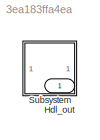
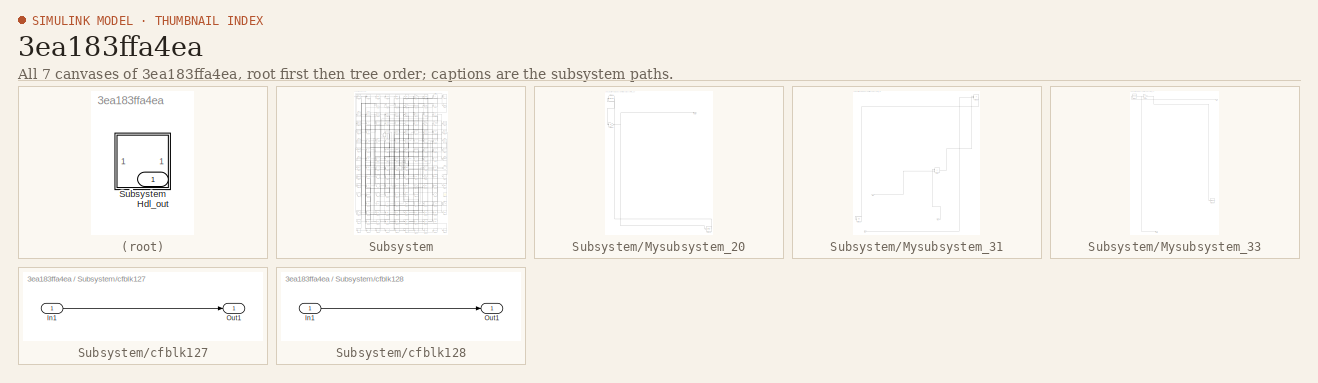
[diagram: thumbnail index - all 7 canvases of the model, root first then tree order]
MODEL slx_3ea183ffa4ea
KIND model
CONFIG AbsTol = auto
CONFIG EnableMultiTasking = off
CONFIG FixedStep = auto
CONFIG MaxStep = auto
CONFIG MinStep = auto
CONFIG RelTol = 1e-3
CONFIG SampleTimeConstraint = Unconstrained
CONFIG SolverName = VariableStepAuto
CONFIG StartTime = 0.0
CONFIG StopTime = 10.0
BLOCK [Outport] Hdl_out
  OutDataTypeStr = uint8
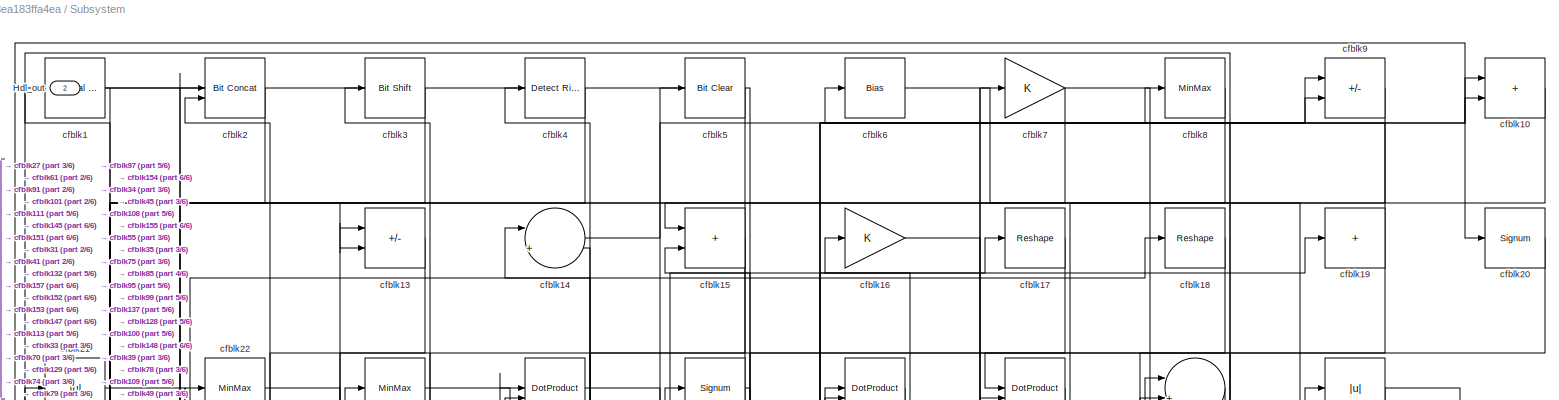
[diagram: Subsystem - part 1/6, full width, top band]
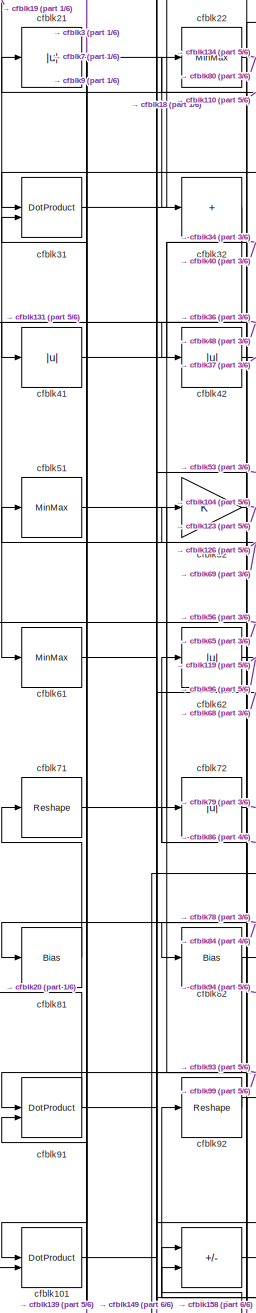
[diagram: Subsystem - part 2/6, middle left region]
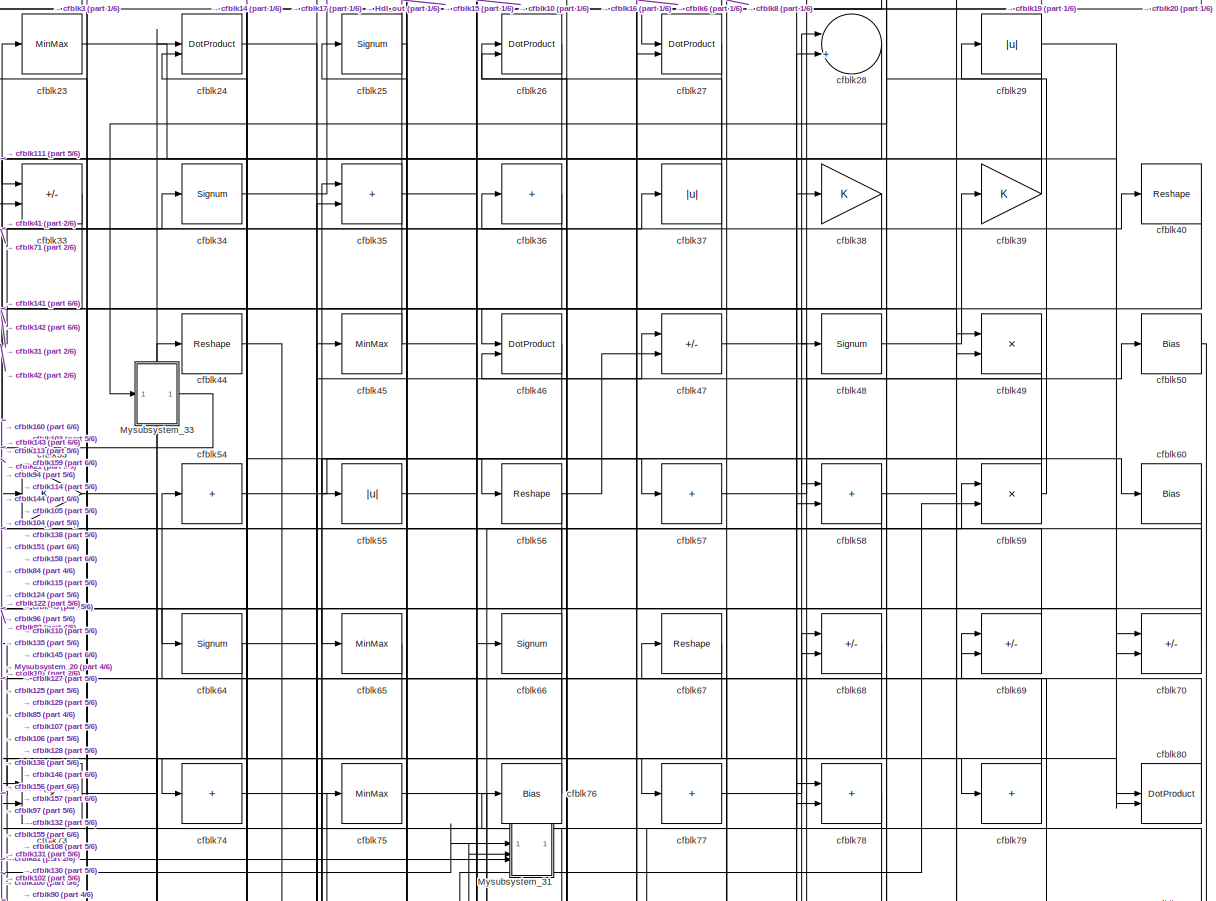
[diagram: Subsystem - part 3/6, full width, top band]
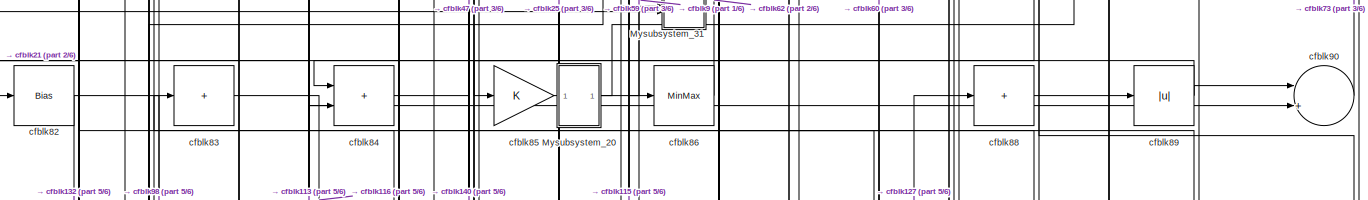
[diagram: Subsystem - part 4/6, full width, middle band]
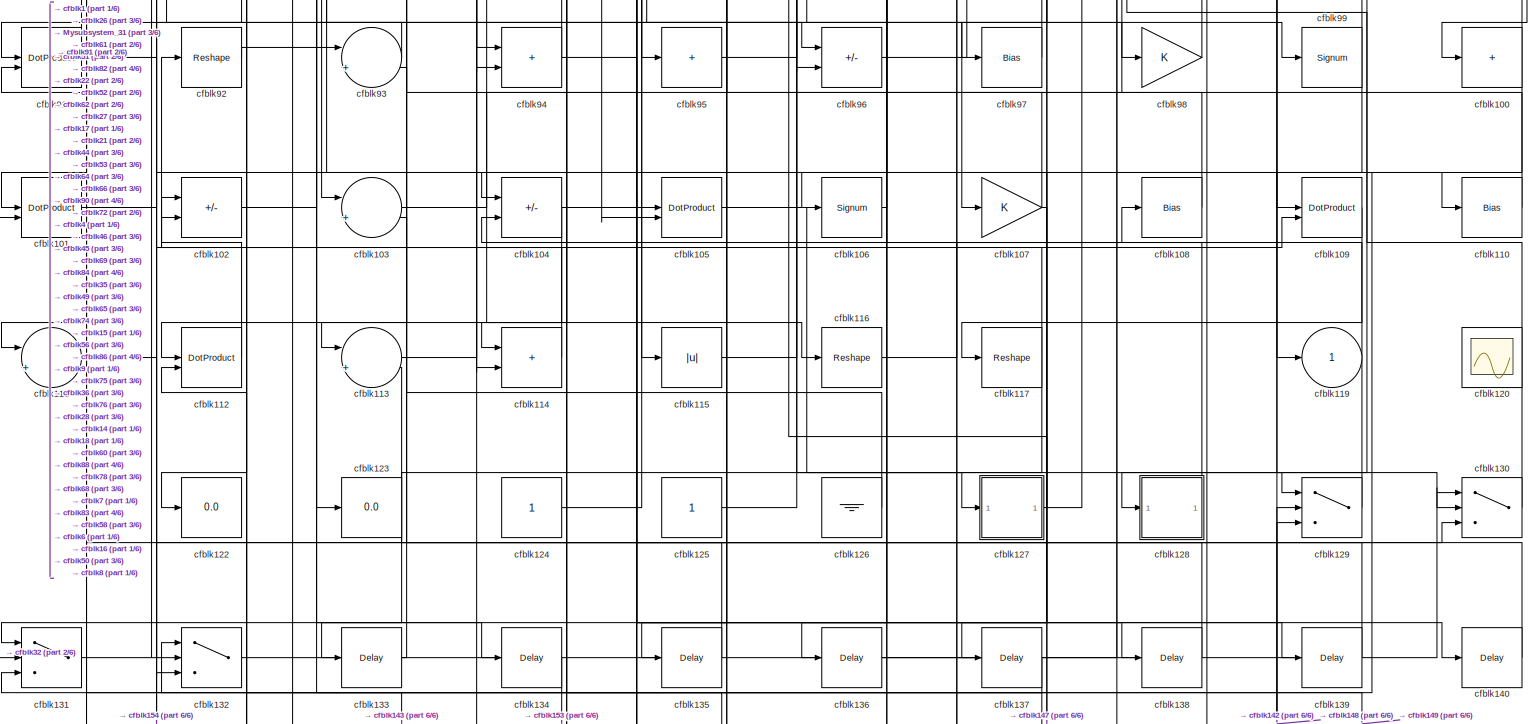
[diagram: Subsystem - part 5/6, full width, bottom band]
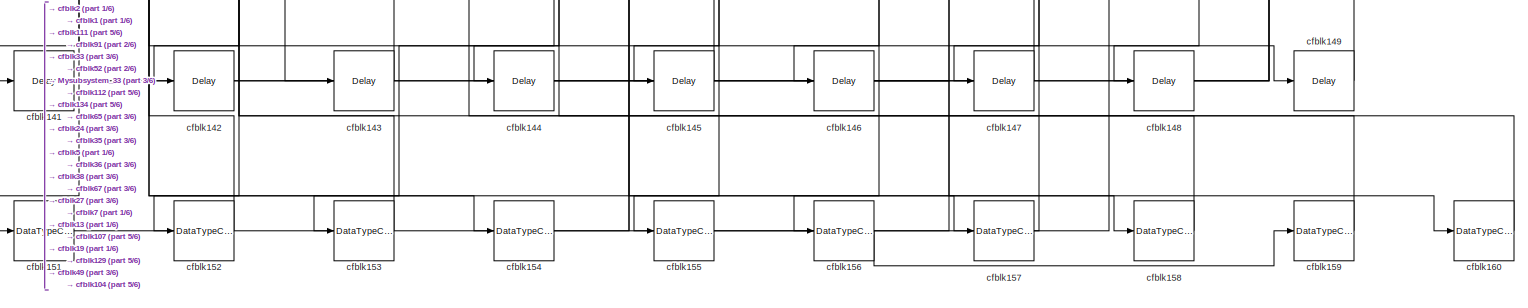
[diagram: Subsystem - part 6/6, full width, bottom band]
BLOCK [SubSystem] Subsystem
BLOCK [Outport] Subsystem/Hdl_out
  OutDataTypeStr = uint8
  Port = 2
BLOCK [SubSystem] Subsystem/Mysubsystem_20
  RTWFcnName = Mysubsystem_20
  RTWFcnNameOpts = User specified
  RTWFileNameOpts = Use function name
  RTWSystemCode = Reusable function
  TreatAsAtomicUnit = on
BLOCK [Outport] Subsystem/Mysubsystem_20/Out1
BLOCK [Delay] Subsystem/Mysubsystem_20/cfblk150
  InputPortMap = u0
  SampleTime = 1
BLOCK [Signum] Subsystem/Mysubsystem_20/cfblk43
BLOCK [Gain] Subsystem/Mysubsystem_20/cfblk63
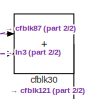
[diagram: Subsystem/Mysubsystem_31 - part 1/2, top right region]
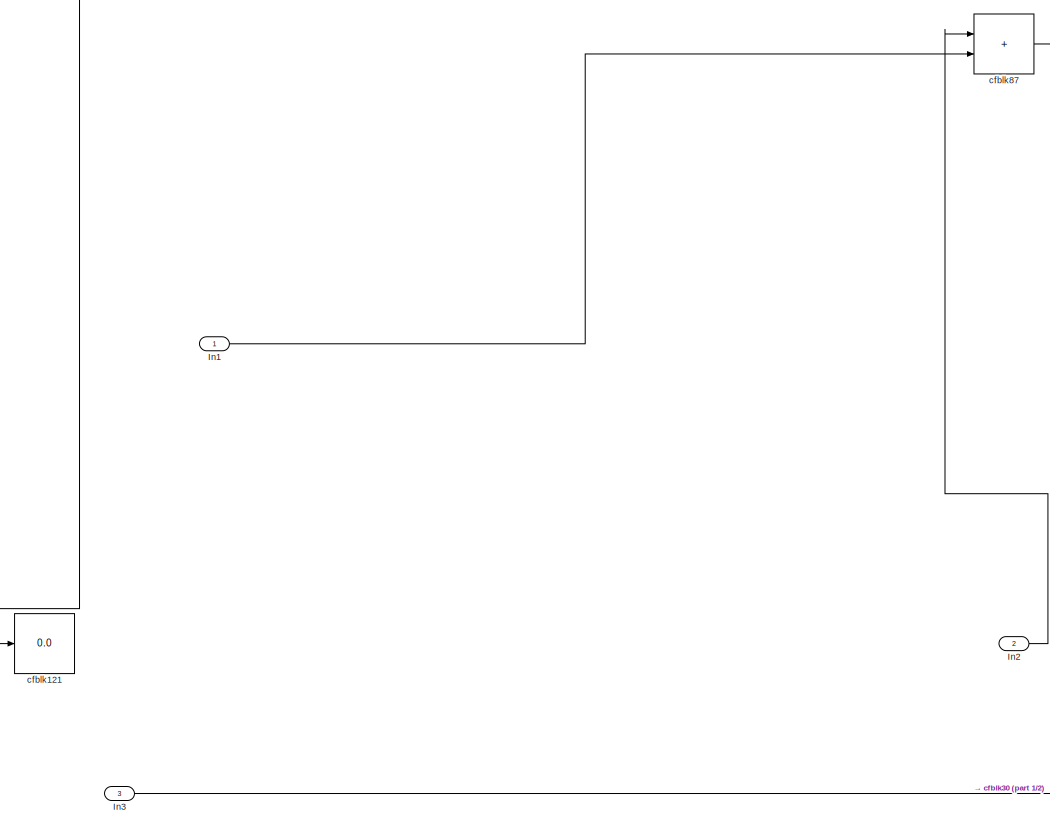
[diagram: Subsystem/Mysubsystem_31 - part 2/2, bottom center region]
BLOCK [SubSystem] Subsystem/Mysubsystem_31
  RTWFcnName = Mysubsystem_31
  RTWFcnNameOpts = User specified
  RTWFileNameOpts = Use function name
  RTWSystemCode = Reusable function
  TreatAsAtomicUnit = on
BLOCK [Inport] Subsystem/Mysubsystem_31/In1
BLOCK [Inport] Subsystem/Mysubsystem_31/In2
  Port = 2
BLOCK [Inport] Subsystem/Mysubsystem_31/In3
  Port = 3
BLOCK [Display] Subsystem/Mysubsystem_31/cfblk121
  Decimation = 1
BLOCK [Sum] Subsystem/Mysubsystem_31/cfblk30
  IconShape = rectangular
BLOCK [Sum] Subsystem/Mysubsystem_31/cfblk87
  IconShape = rectangular
BLOCK [SubSystem] Subsystem/Mysubsystem_33
  RTWFcnName = Mysubsystem_33
  RTWFcnNameOpts = User specified
  RTWFileNameOpts = Use function name
  RTWSystemCode = Reusable function
  TreatAsAtomicUnit = on
BLOCK [Inport] Subsystem/Mysubsystem_33/In1
BLOCK [Outport] Subsystem/Mysubsystem_33/Out1
BLOCK [Reshape] Subsystem/Mysubsystem_33/cfblk11
BLOCK [ToWorkspace] Subsystem/Mysubsystem_33/cfblk118
  MaxDataPoints = inf
  SampleTime = -1
  SaveFormat = Timeseries
  VariableName = simout
BLOCK [Gain] Subsystem/Mysubsystem_33/cfblk12
BLOCK [Reference] Subsystem/cfblk1  REF=hdlsllib/Logic and Bit
Operations/Interval Test
  SourceBlock = hdlsllib/Logic and Bit\nOperations/Interval Test
  SourceType = Interval Test
BLOCK [Sum] Subsystem/cfblk10
  IconShape = rectangular
  OutDataTypeStr = uint8
BLOCK [Sum] Subsystem/cfblk100
  IconShape = rectangular
  Inputs = +
  OutDataTypeStr = uint8
BLOCK [DotProduct] Subsystem/cfblk101
  OutDataTypeStr = uint8
BLOCK [Sum] Subsystem/cfblk102
  IconShape = rectangular
  Inputs = +-
  OutDataTypeStr = uint8
BLOCK [Sum] Subsystem/cfblk103
  Inputs = |++
  OutDataTypeStr = uint8
BLOCK [Sum] Subsystem/cfblk104
  IconShape = rectangular
  Inputs = +-
  OutDataTypeStr = uint8
BLOCK [DotProduct] Subsystem/cfblk105
  OutDataTypeStr = uint8
BLOCK [Signum] Subsystem/cfblk106
BLOCK [Gain] Subsystem/cfblk107
  OutDataTypeStr = uint8
BLOCK [Bias] Subsystem/cfblk108
  Bias = 0.0
  SaturateOnIntegerOverflow = off
BLOCK [DotProduct] Subsystem/cfblk109
  OutDataTypeStr = uint8
BLOCK [Bias] Subsystem/cfblk110
  Bias = 0.0
  SaturateOnIntegerOverflow = off
BLOCK [Sum] Subsystem/cfblk111
  Inputs = |++
  OutDataTypeStr = uint8
BLOCK [DotProduct] Subsystem/cfblk112
  OutDataTypeStr = uint8
BLOCK [Sum] Subsystem/cfblk113
  Inputs = |++
  OutDataTypeStr = uint8
BLOCK [Sum] Subsystem/cfblk114
  IconShape = rectangular
  OutDataTypeStr = uint8
BLOCK [Abs] Subsystem/cfblk115
  OutDataTypeStr = uint8
  SaturateOnIntegerOverflow = off
BLOCK [Reshape] Subsystem/cfblk116
BLOCK [Reshape] Subsystem/cfblk117
BLOCK [Outport] Subsystem/cfblk119
  OutDataTypeStr = uint8
  VectorParamsAs1DForOutWhenUnconnected = off
BLOCK [Scope] Subsystem/cfblk120
  Floating = on
  NumInputPorts = 1
  ScopeSpecificationString = Simulink.scopes.TimeScopeBlockCfg('CurrentConfiguration', extmgr.ConfigurationSet(extmgr.Configuration('Core','General UI',true,'FigureColor',[0.156862745098039 0.156862745098039 0.156862745098039]),extmgr.Configuration('Core','Source UI',true),extmgr.Configuration('Sources','WiredSimulink',true,'DataLoggingSaveFormat','StructureWithTime','DataLoggingLimitDataPoints',true,'DataLoggingDecimation','...<+2674ch>
BLOCK [Display] Subsystem/cfblk122
  Decimation = 1
BLOCK [Display] Subsystem/cfblk123
  Decimation = 1
BLOCK [Constant] Subsystem/cfblk124
  OutDataTypeStr = uint8
  SampleTime = -1
BLOCK [Constant] Subsystem/cfblk125
  OutDataTypeStr = uint8
  SampleTime = -1
BLOCK [Ground] Subsystem/cfblk126
BLOCK [SubSystem] Subsystem/cfblk127
  LibrarySourceBlock = hdlsllib/Ports &\nSubsystems/Subsystem
BLOCK [Inport] Subsystem/cfblk127/In1
BLOCK [Outport] Subsystem/cfblk127/Out1
BLOCK [SubSystem] Subsystem/cfblk128
  LibrarySourceBlock = hdlsllib/Ports &\nSubsystems/Subsystem
BLOCK [Inport] Subsystem/cfblk128/In1
BLOCK [Outport] Subsystem/cfblk128/Out1
BLOCK [Switch] Subsystem/cfblk129
  InputSameDT = off
  OutDataTypeStr = uint8
  SaturateOnIntegerOverflow = off
BLOCK [Sum] Subsystem/cfblk13
  IconShape = rectangular
  Inputs = +-
  OutDataTypeStr = uint8
BLOCK [Switch] Subsystem/cfblk130
  InputSameDT = off
  OutDataTypeStr = uint8
  SaturateOnIntegerOverflow = off
BLOCK [Switch] Subsystem/cfblk131
  InputSameDT = off
  OutDataTypeStr = uint8
  SaturateOnIntegerOverflow = off
BLOCK [Switch] Subsystem/cfblk132
  InputSameDT = off
  OutDataTypeStr = uint8
  SaturateOnIntegerOverflow = off
BLOCK [Delay] Subsystem/cfblk133
  InputPortMap = u0
  SampleTime = 1
BLOCK [Delay] Subsystem/cfblk134
  InputPortMap = u0
  SampleTime = 1
BLOCK [Delay] Subsystem/cfblk135
  InputPortMap = u0
  SampleTime = 1
BLOCK [Delay] Subsystem/cfblk136
  InputPortMap = u0
  SampleTime = 1
BLOCK [Delay] Subsystem/cfblk137
  InputPortMap = u0
  SampleTime = 1
BLOCK [Delay] Subsystem/cfblk138
  InputPortMap = u0
  SampleTime = 1
BLOCK [Delay] Subsystem/cfblk139
  InputPortMap = u0
  SampleTime = 1
BLOCK [Sum] Subsystem/cfblk14
  Inputs = |++
  OutDataTypeStr = uint8
BLOCK [Delay] Subsystem/cfblk140
  InputPortMap = u0
  SampleTime = 1
BLOCK [Delay] Subsystem/cfblk141
  InputPortMap = u0
  SampleTime = 1
BLOCK [Delay] Subsystem/cfblk142
  InputPortMap = u0
  SampleTime = 1
BLOCK [Delay] Subsystem/cfblk143
  InputPortMap = u0
  SampleTime = 1
BLOCK [Delay] Subsystem/cfblk144
  InputPortMap = u0
  SampleTime = 1
BLOCK [Delay] Subsystem/cfblk145
  InputPortMap = u0
  SampleTime = 1
BLOCK [Delay] Subsystem/cfblk146
  InputPortMap = u0
  SampleTime = 1
BLOCK [Delay] Subsystem/cfblk147
  InputPortMap = u0
  SampleTime = 1
BLOCK [Delay] Subsystem/cfblk148
  InputPortMap = u0
  SampleTime = 1
BLOCK [Delay] Subsystem/cfblk149
  InputPortMap = u0
  SampleTime = 1
BLOCK [Sum] Subsystem/cfblk15
  IconShape = rectangular
  OutDataTypeStr = uint8
BLOCK [DataTypeConversion] Subsystem/cfblk151
  OutDataTypeStr = uint8
  RndMeth = Floor
  SaturateOnIntegerOverflow = off
BLOCK [DataTypeConversion] Subsystem/cfblk152
  OutDataTypeStr = uint8
  RndMeth = Floor
  SaturateOnIntegerOverflow = off
BLOCK [DataTypeConversion] Subsystem/cfblk153
  OutDataTypeStr = uint8
  RndMeth = Floor
  SaturateOnIntegerOverflow = off
BLOCK [DataTypeConversion] Subsystem/cfblk154
  OutDataTypeStr = uint8
  RndMeth = Floor
  SaturateOnIntegerOverflow = off
BLOCK [DataTypeConversion] Subsystem/cfblk155
  OutDataTypeStr = uint8
  RndMeth = Floor
  SaturateOnIntegerOverflow = off
BLOCK [DataTypeConversion] Subsystem/cfblk156
  OutDataTypeStr = uint8
  RndMeth = Floor
  SaturateOnIntegerOverflow = off
BLOCK [DataTypeConversion] Subsystem/cfblk157
  OutDataTypeStr = uint8
  RndMeth = Floor
  SaturateOnIntegerOverflow = off
BLOCK [DataTypeConversion] Subsystem/cfblk158
  OutDataTypeStr = uint8
  RndMeth = Floor
  SaturateOnIntegerOverflow = off
BLOCK [DataTypeConversion] Subsystem/cfblk159
  OutDataTypeStr = uint8
  RndMeth = Floor
  SaturateOnIntegerOverflow = off
BLOCK [Gain] Subsystem/cfblk16
  OutDataTypeStr = uint8
BLOCK [DataTypeConversion] Subsystem/cfblk160
  OutDataTypeStr = uint8
  RndMeth = Floor
  SaturateOnIntegerOverflow = off
BLOCK [Reshape] Subsystem/cfblk17
BLOCK [Reshape] Subsystem/cfblk18
BLOCK [Sum] Subsystem/cfblk19
  IconShape = rectangular
  Inputs = +
  OutDataTypeStr = uint8
BLOCK [Reference] Subsystem/cfblk2  REF=hdlsllib/Logic and Bit
Operations/Bit Concat
  SourceBlock = hdlsllib/Logic and Bit\nOperations/Bit Concat
  SourceType = Bit Concat
BLOCK [Signum] Subsystem/cfblk20
BLOCK [Abs] Subsystem/cfblk21
  OutDataTypeStr = uint8
  SaturateOnIntegerOverflow = off
BLOCK [MinMax] Subsystem/cfblk22
  OutDataTypeStr = uint8
BLOCK [MinMax] Subsystem/cfblk23
  OutDataTypeStr = uint8
BLOCK [DotProduct] Subsystem/cfblk24
  OutDataTypeStr = uint8
BLOCK [Signum] Subsystem/cfblk25
BLOCK [DotProduct] Subsystem/cfblk26
  OutDataTypeStr = uint8
BLOCK [DotProduct] Subsystem/cfblk27
  OutDataTypeStr = uint8
BLOCK [Sum] Subsystem/cfblk28
  Inputs = |++
  OutDataTypeStr = uint8
BLOCK [Abs] Subsystem/cfblk29
  OutDataTypeStr = uint8
  SaturateOnIntegerOverflow = off
BLOCK [Reference] Subsystem/cfblk3  REF=hdlsllib/Logic and Bit
Operations/Bit Shift
  SourceBlock = hdlsllib/Logic and Bit\nOperations/Bit Shift
  SourceType = Bit Shift
BLOCK [DotProduct] Subsystem/cfblk31
  OutDataTypeStr = uint8
BLOCK [Sum] Subsystem/cfblk32
  IconShape = rectangular
  Inputs = +
  OutDataTypeStr = uint8
BLOCK [Sum] Subsystem/cfblk33
  IconShape = rectangular
  Inputs = +-
  OutDataTypeStr = uint8
BLOCK [Signum] Subsystem/cfblk34
BLOCK [Sum] Subsystem/cfblk35
  IconShape = rectangular
  OutDataTypeStr = uint8
BLOCK [Sum] Subsystem/cfblk36
  IconShape = rectangular
  Inputs = +
  OutDataTypeStr = uint8
BLOCK [Abs] Subsystem/cfblk37
  OutDataTypeStr = uint8
  SaturateOnIntegerOverflow = off
BLOCK [Gain] Subsystem/cfblk38
  OutDataTypeStr = uint8
BLOCK [Gain] Subsystem/cfblk39
  OutDataTypeStr = uint8
BLOCK [Reference] Subsystem/cfblk4  REF=hdlsllib/Logic and Bit
Operations/Detect Rise
Nonnegative
  SourceBlock = hdlsllib/Logic and Bit\nOperations/Detect Rise\nNonnegative
  SourceType = Detect Rise Nonnegative
BLOCK [Reshape] Subsystem/cfblk40
BLOCK [Abs] Subsystem/cfblk41
  OutDataTypeStr = uint8
  SaturateOnIntegerOverflow = off
BLOCK [Abs] Subsystem/cfblk42
  OutDataTypeStr = uint8
  SaturateOnIntegerOverflow = off
BLOCK [Reshape] Subsystem/cfblk44
BLOCK [MinMax] Subsystem/cfblk45
  OutDataTypeStr = uint8
BLOCK [DotProduct] Subsystem/cfblk46
  OutDataTypeStr = uint8
BLOCK [Sum] Subsystem/cfblk47
  IconShape = rectangular
  Inputs = +-
  OutDataTypeStr = uint8
BLOCK [Signum] Subsystem/cfblk48
BLOCK [Product] Subsystem/cfblk49
  Inputs = */
  OutDataTypeStr = uint8
  RndMeth = Zero
  SaturateOnIntegerOverflow = on
BLOCK [Reference] Subsystem/cfblk5  REF=simulink/Logic and Bit
Operations/Bit Clear
  LibrarySourceBlock = hdlsllib/Logic and Bit\nOperations/Bit Clear
  SourceBlock = simulink/Logic and Bit\nOperations/Bit Clear
  SourceType = Bit Clear
BLOCK [Bias] Subsystem/cfblk50
  Bias = 0.0
  SaturateOnIntegerOverflow = off
BLOCK [MinMax] Subsystem/cfblk51
  OutDataTypeStr = uint8
BLOCK [Gain] Subsystem/cfblk52
  OutDataTypeStr = uint8
BLOCK [Gain] Subsystem/cfblk53
  OutDataTypeStr = uint8
BLOCK [Sum] Subsystem/cfblk54
  IconShape = rectangular
  Inputs = +
  OutDataTypeStr = uint8
BLOCK [Abs] Subsystem/cfblk55
  OutDataTypeStr = uint8
  SaturateOnIntegerOverflow = off
BLOCK [Reshape] Subsystem/cfblk56
BLOCK [Sum] Subsystem/cfblk57
  IconShape = rectangular
  Inputs = +
  OutDataTypeStr = uint8
BLOCK [Sum] Subsystem/cfblk58
  IconShape = rectangular
  OutDataTypeStr = uint8
BLOCK [Product] Subsystem/cfblk59
  Inputs = */
  OutDataTypeStr = uint8
  RndMeth = Zero
  SaturateOnIntegerOverflow = on
BLOCK [Bias] Subsystem/cfblk6
  Bias = 0.0
  SaturateOnIntegerOverflow = off
BLOCK [Bias] Subsystem/cfblk60
  Bias = 0.0
  SaturateOnIntegerOverflow = off
BLOCK [MinMax] Subsystem/cfblk61
  OutDataTypeStr = uint8
BLOCK [Abs] Subsystem/cfblk62
  OutDataTypeStr = uint8
  SaturateOnIntegerOverflow = off
BLOCK [Signum] Subsystem/cfblk64
BLOCK [MinMax] Subsystem/cfblk65
  OutDataTypeStr = uint8
BLOCK [Signum] Subsystem/cfblk66
BLOCK [Reshape] Subsystem/cfblk67
BLOCK [Sum] Subsystem/cfblk68
  IconShape = rectangular
  Inputs = +-
  OutDataTypeStr = uint8
BLOCK [Sum] Subsystem/cfblk69
  IconShape = rectangular
  Inputs = +-
  OutDataTypeStr = uint8
BLOCK [Gain] Subsystem/cfblk7
  OutDataTypeStr = uint8
BLOCK [Sum] Subsystem/cfblk70
  IconShape = rectangular
  Inputs = +-
  OutDataTypeStr = uint8
BLOCK [Reshape] Subsystem/cfblk71
BLOCK [Abs] Subsystem/cfblk72
  OutDataTypeStr = uint8
  SaturateOnIntegerOverflow = off
BLOCK [Product] Subsystem/cfblk73
  Inputs = */
  OutDataTypeStr = uint8
  RndMeth = Zero
  SaturateOnIntegerOverflow = on
BLOCK [Sum] Subsystem/cfblk74
  IconShape = rectangular
  Inputs = +
  OutDataTypeStr = uint8
BLOCK [MinMax] Subsystem/cfblk75
  OutDataTypeStr = uint8
BLOCK [Bias] Subsystem/cfblk76
  Bias = 0.0
  SaturateOnIntegerOverflow = off
BLOCK [Sum] Subsystem/cfblk77
  IconShape = rectangular
  Inputs = +
  OutDataTypeStr = uint8
BLOCK [Sum] Subsystem/cfblk78
  IconShape = rectangular
  OutDataTypeStr = uint8
BLOCK [Sum] Subsystem/cfblk79
  IconShape = rectangular
  Inputs = +
  OutDataTypeStr = uint8
BLOCK [MinMax] Subsystem/cfblk8
  OutDataTypeStr = uint8
BLOCK [DotProduct] Subsystem/cfblk80
  OutDataTypeStr = uint8
BLOCK [Bias] Subsystem/cfblk81
  Bias = 0.0
  SaturateOnIntegerOverflow = off
BLOCK [Bias] Subsystem/cfblk82
  Bias = 0.0
  SaturateOnIntegerOverflow = off
BLOCK [Sum] Subsystem/cfblk83
  IconShape = rectangular
  Inputs = +
  OutDataTypeStr = uint8
BLOCK [Sum] Subsystem/cfblk84
  IconShape = rectangular
  OutDataTypeStr = uint8
BLOCK [Gain] Subsystem/cfblk85
  OutDataTypeStr = uint8
BLOCK [MinMax] Subsystem/cfblk86
  OutDataTypeStr = uint8
BLOCK [Sum] Subsystem/cfblk88
  IconShape = rectangular
  Inputs = +
  OutDataTypeStr = uint8
BLOCK [Abs] Subsystem/cfblk89
  OutDataTypeStr = uint8
  SaturateOnIntegerOverflow = off
BLOCK [Sum] Subsystem/cfblk9
  IconShape = rectangular
  Inputs = +-
  OutDataTypeStr = uint8
BLOCK [Sum] Subsystem/cfblk90
  Inputs = |++
  OutDataTypeStr = uint8
BLOCK [DotProduct] Subsystem/cfblk91
  OutDataTypeStr = uint8
BLOCK [Reshape] Subsystem/cfblk92
BLOCK [Sum] Subsystem/cfblk93
  Inputs = |++
  OutDataTypeStr = uint8
BLOCK [Sum] Subsystem/cfblk94
  IconShape = rectangular
  OutDataTypeStr = uint8
BLOCK [Sum] Subsystem/cfblk95
  IconShape = rectangular
  Inputs = +
  OutDataTypeStr = uint8
BLOCK [Sum] Subsystem/cfblk96
  IconShape = rectangular
  Inputs = +-
  OutDataTypeStr = uint8
BLOCK [Bias] Subsystem/cfblk97
  Bias = 0.0
  SaturateOnIntegerOverflow = off
BLOCK [Gain] Subsystem/cfblk98
  OutDataTypeStr = uint8
BLOCK [Signum] Subsystem/cfblk99
LINE Subsystem/Mysubsystem_20/cfblk150:1 -> Subsystem/Mysubsystem_20/cfblk43:1
LINE Subsystem/Mysubsystem_20/cfblk43:1 -> Subsystem/Mysubsystem_20/cfblk63:1
NET Subsystem/Mysubsystem_20/cfblk63:1 -> Subsystem/Mysubsystem_20/Out1:1, Subsystem/Mysubsystem_20/cfblk150:1
LINE Subsystem/Mysubsystem_20:1 -> Subsystem/cfblk59:2
LINE Subsystem/Mysubsystem_31/In1:1 -> Subsystem/Mysubsystem_31/cfblk87:2
LINE Subsystem/Mysubsystem_31/In2:1 -> Subsystem/Mysubsystem_31/cfblk87:1
LINE Subsystem/Mysubsystem_31/In3:1 -> Subsystem/Mysubsystem_31/cfblk30:2
LINE Subsystem/Mysubsystem_31/cfblk30:1 -> Subsystem/Mysubsystem_31/cfblk121:1
LINE Subsystem/Mysubsystem_31/cfblk87:1 -> Subsystem/Mysubsystem_31/cfblk30:1
LINE Subsystem/Mysubsystem_33/In1:1 -> Subsystem/Mysubsystem_33/cfblk11:1
NET Subsystem/Mysubsystem_33/cfblk11:1 -> Subsystem/Mysubsystem_33/Out1:1, Subsystem/Mysubsystem_33/cfblk12:1
LINE Subsystem/Mysubsystem_33/cfblk12:1 -> Subsystem/Mysubsystem_33/cfblk118:1
LINE Subsystem/Mysubsystem_33:1 -> Subsystem/cfblk143:1
NET Subsystem/cfblk100:1 -> Subsystem/cfblk132:1, Subsystem/cfblk8:1
LINE Subsystem/cfblk101:1 -> Subsystem/cfblk68:2
LINE Subsystem/cfblk102:1 -> Subsystem/Mysubsystem_31:1
LINE Subsystem/cfblk103:1 -> Subsystem/cfblk45:1
NET Subsystem/cfblk104:1 -> Subsystem/cfblk112:1, Subsystem/cfblk69:2
LINE Subsystem/cfblk105:1 -> Subsystem/cfblk127:1
LINE Subsystem/cfblk106:1 -> Subsystem/cfblk46:2
NET Subsystem/cfblk107:1 -> Subsystem/cfblk147:1, Subsystem/cfblk36:1
NET Subsystem/cfblk108:1 -> Subsystem/cfblk15:2, Subsystem/cfblk68:1
LINE Subsystem/cfblk109:1 -> Subsystem/cfblk117:1
LINE Subsystem/cfblk10:1 -> Subsystem/cfblk15:1
NET Subsystem/cfblk110:1 -> Subsystem/cfblk21:1, Subsystem/cfblk75:1
LINE Subsystem/cfblk111:1 -> Subsystem/cfblk154:1
LINE Subsystem/cfblk112:1 -> Subsystem/cfblk92:1
NET Subsystem/cfblk113:1 -> Subsystem/cfblk44:1, Subsystem/cfblk90:2
LINE Subsystem/cfblk114:1 -> Subsystem/cfblk102:1
LINE Subsystem/cfblk115:1 -> Subsystem/cfblk86:1
LINE Subsystem/cfblk116:1 -> Subsystem/cfblk108:1
NET Subsystem/cfblk117:1 -> Subsystem/cfblk102:2, Subsystem/cfblk133:1
LINE Subsystem/cfblk124:1 -> Subsystem/cfblk35:1
LINE Subsystem/cfblk125:1 -> Subsystem/cfblk66:1
LINE Subsystem/cfblk126:1 -> Subsystem/cfblk51:1
LINE Subsystem/cfblk127/In1:1 -> Subsystem/cfblk127/Out1:1
NET Subsystem/cfblk127:1 -> Subsystem/Mysubsystem_31:2, Subsystem/cfblk88:1
LINE Subsystem/cfblk128/In1:1 -> Subsystem/cfblk128/Out1:1
LINE Subsystem/cfblk128:1 -> Subsystem/cfblk76:1
LINE Subsystem/cfblk129:1 -> Subsystem/cfblk4:1
LINE Subsystem/cfblk130:1 -> Subsystem/cfblk69:1
NET Subsystem/cfblk131:1 -> Subsystem/Mysubsystem_31:3, Subsystem/cfblk109:2, Subsystem/cfblk130:3
LINE Subsystem/cfblk132:1 -> Subsystem/cfblk78:1
LINE Subsystem/cfblk133:1 -> Subsystem/cfblk103:2
LINE Subsystem/cfblk134:1 -> Subsystem/cfblk153:1
LINE Subsystem/cfblk135:1 -> Subsystem/cfblk93:2
LINE Subsystem/cfblk136:1 -> Subsystem/cfblk130:1
LINE Subsystem/cfblk137:1 -> Subsystem/cfblk131:3
LINE Subsystem/cfblk138:1 -> Subsystem/cfblk113:2
LINE Subsystem/cfblk139:1 -> Subsystem/cfblk91:2
LINE Subsystem/cfblk13:1 -> Subsystem/cfblk152:1
LINE Subsystem/cfblk140:1 -> Subsystem/cfblk105:1
LINE Subsystem/cfblk141:1 -> Subsystem/cfblk49:1
LINE Subsystem/cfblk142:1 -> Subsystem/cfblk129:2
LINE Subsystem/cfblk143:1 -> Subsystem/cfblk112:2
LINE Subsystem/cfblk144:1 -> Subsystem/cfblk27:2
LINE Subsystem/cfblk145:1 -> Subsystem/cfblk1:1
LINE Subsystem/cfblk146:1 -> Subsystem/cfblk160:1
LINE Subsystem/cfblk147:1 -> Subsystem/cfblk13:1
LINE Subsystem/cfblk148:1 -> Subsystem/cfblk129:3
LINE Subsystem/cfblk149:1 -> Subsystem/cfblk104:2
LINE Subsystem/cfblk14:1 -> Subsystem/cfblk10:1
NET Subsystem/cfblk151:1 -> Subsystem/cfblk35:2, Subsystem/cfblk7:1
LINE Subsystem/cfblk152:1 -> Subsystem/cfblk2:1
LINE Subsystem/cfblk153:1 -> Subsystem/cfblk2:2
LINE Subsystem/cfblk154:1 -> Subsystem/cfblk5:1
LINE Subsystem/cfblk155:1 -> Subsystem/cfblk38:1
LINE Subsystem/cfblk156:1 -> Subsystem/cfblk159:1
LINE Subsystem/cfblk157:1 -> Subsystem/cfblk67:1
LINE Subsystem/cfblk158:1 -> Subsystem/cfblk52:1
LINE Subsystem/cfblk159:1 -> Subsystem/cfblk24:1
LINE Subsystem/cfblk15:1 -> Subsystem/cfblk74:1
LINE Subsystem/cfblk160:1 -> Subsystem/cfblk24:2
LINE Subsystem/cfblk16:1 -> Subsystem/cfblk70:2
NET Subsystem/cfblk17:1 -> Subsystem/cfblk113:1, Subsystem/cfblk33:2
LINE Subsystem/cfblk18:1 -> Subsystem/cfblk137:1
NET Subsystem/cfblk19:1 -> Subsystem/cfblk148:1, Subsystem/cfblk61:1, Subsystem/cfblk78:2
NET Subsystem/cfblk1:1 -> Subsystem/cfblk111:2, Subsystem/cfblk157:1
LINE Subsystem/cfblk20:1 -> Subsystem/cfblk55:1
NET Subsystem/cfblk21:1 -> Subsystem/cfblk32:1, Subsystem/cfblk53:1, Subsystem/cfblk65:1, Subsystem/cfblk84:2
NET Subsystem/cfblk22:1 -> Subsystem/cfblk134:1, Subsystem/cfblk80:2
LINE Subsystem/cfblk23:1 -> Subsystem/cfblk70:1
LINE Subsystem/cfblk24:1 -> Subsystem/cfblk158:1
LINE Subsystem/cfblk25:1 -> Subsystem/cfblk85:1
LINE Subsystem/cfblk26:1 -> Subsystem/cfblk111:1
LINE Subsystem/cfblk27:1 -> Subsystem/cfblk103:1
LINE Subsystem/cfblk28:1 -> Subsystem/cfblk136:1
NET Subsystem/cfblk29:1 -> Subsystem/cfblk33:1, Subsystem/cfblk58:2, Subsystem/cfblk80:1
LINE Subsystem/cfblk2:1 -> Subsystem/cfblk151:1
NET Subsystem/cfblk31:1 -> Subsystem/cfblk18:1, Subsystem/cfblk48:1
LINE Subsystem/cfblk32:1 -> Subsystem/cfblk131:2
NET Subsystem/cfblk33:1 -> Subsystem/cfblk141:1, Subsystem/cfblk142:1
LINE Subsystem/cfblk34:1 -> Subsystem/cfblk17:1
NET Subsystem/cfblk35:1 -> Subsystem/cfblk19:1, Subsystem/cfblk58:1
NET Subsystem/cfblk36:1 -> Subsystem/cfblk145:1, Subsystem/cfblk42:1
NET Subsystem/cfblk37:1 -> Subsystem/cfblk26:2, Subsystem/cfblk73:1
LINE Subsystem/cfblk38:1 -> Subsystem/cfblk146:1
NET Subsystem/cfblk39:1 -> Subsystem/Mysubsystem_33:1, Subsystem/cfblk6:1
LINE Subsystem/cfblk3:1 -> Subsystem/cfblk101:1
LINE Subsystem/cfblk40:1 -> Subsystem/cfblk46:1
LINE Subsystem/cfblk41:1 -> Subsystem/cfblk34:1
LINE Subsystem/cfblk42:1 -> Subsystem/cfblk37:1
NET Subsystem/cfblk44:1 -> Subsystem/cfblk105:2, Subsystem/cfblk64:1
NET Subsystem/cfblk45:1 -> Subsystem/Hdl_out:1, Subsystem/cfblk129:1
LINE Subsystem/cfblk46:1 -> Subsystem/cfblk114:1
LINE Subsystem/cfblk47:1 -> Subsystem/cfblk60:1
LINE Subsystem/cfblk48:1 -> Subsystem/cfblk39:1
LINE Subsystem/cfblk49:1 -> Subsystem/cfblk95:1
NET Subsystem/cfblk4:1 -> Subsystem/cfblk132:2, Subsystem/cfblk13:2
LINE Subsystem/cfblk50:1 -> Subsystem/cfblk100:1
LINE Subsystem/cfblk51:1 -> Subsystem/cfblk99:1
NET Subsystem/cfblk52:1 -> Subsystem/cfblk104:1, Subsystem/cfblk123:1
LINE Subsystem/cfblk53:1 -> Subsystem/cfblk94:1
LINE Subsystem/cfblk54:1 -> Subsystem/cfblk56:1
LINE Subsystem/cfblk55:1 -> Subsystem/cfblk57:1
NET Subsystem/cfblk56:1 -> Subsystem/cfblk101:2, Subsystem/cfblk135:1, Subsystem/cfblk47:2
LINE Subsystem/cfblk57:1 -> Subsystem/cfblk50:1
NET Subsystem/cfblk58:1 -> Subsystem/cfblk122:1, Subsystem/cfblk130:2
NET Subsystem/cfblk59:1 -> Subsystem/cfblk26:1, Subsystem/cfblk29:1
LINE Subsystem/cfblk5:1 -> Subsystem/cfblk155:1
NET Subsystem/cfblk60:1 -> Subsystem/cfblk82:1, Subsystem/cfblk97:1
LINE Subsystem/cfblk61:1 -> Subsystem/cfblk110:1
NET Subsystem/cfblk62:1 -> Subsystem/cfblk119:1, Subsystem/cfblk96:2
NET Subsystem/cfblk64:1 -> Subsystem/cfblk138:1, Subsystem/cfblk94:2
NET Subsystem/cfblk65:1 -> Subsystem/cfblk115:1, Subsystem/cfblk144:1
NET Subsystem/cfblk66:1 -> Subsystem/cfblk114:2, Subsystem/cfblk25:1
LINE Subsystem/cfblk67:1 -> Subsystem/cfblk156:1
LINE Subsystem/cfblk68:1 -> Subsystem/cfblk106:1
NET Subsystem/cfblk69:1 -> Subsystem/cfblk22:1, Subsystem/cfblk31:2
NET Subsystem/cfblk6:1 -> Subsystem/cfblk109:1, Subsystem/cfblk49:2
LINE Subsystem/cfblk70:1 -> Subsystem/cfblk3:1
LINE Subsystem/cfblk71:1 -> Subsystem/cfblk40:1
LINE Subsystem/cfblk72:1 -> Subsystem/cfblk79:1
LINE Subsystem/cfblk73:1 -> Subsystem/cfblk77:1
LINE Subsystem/cfblk74:1 -> Subsystem/cfblk96:1
NET Subsystem/cfblk75:1 -> Subsystem/cfblk107:1, Subsystem/cfblk10:2
LINE Subsystem/cfblk76:1 -> Subsystem/cfblk23:1
LINE Subsystem/cfblk77:1 -> Subsystem/cfblk28:1
LINE Subsystem/cfblk78:1 -> Subsystem/cfblk81:1
LINE Subsystem/cfblk79:1 -> Subsystem/cfblk14:1
NET Subsystem/cfblk7:1 -> Subsystem/cfblk128:1, Subsystem/cfblk31:1
LINE Subsystem/cfblk80:1 -> Subsystem/cfblk54:1
LINE Subsystem/cfblk81:1 -> Subsystem/cfblk71:1
NET Subsystem/cfblk82:1 -> Subsystem/cfblk132:3, Subsystem/cfblk98:1
LINE Subsystem/cfblk83:1 -> Subsystem/cfblk116:1
NET Subsystem/cfblk84:1 -> Subsystem/cfblk140:1, Subsystem/cfblk47:1
NET Subsystem/cfblk85:1 -> Subsystem/cfblk59:1, Subsystem/cfblk9:2
LINE Subsystem/cfblk86:1 -> Subsystem/cfblk62:1
LINE Subsystem/cfblk88:1 -> Subsystem/cfblk89:1
NET Subsystem/cfblk89:1 -> Subsystem/cfblk84:1, Subsystem/cfblk90:1
LINE Subsystem/cfblk8:1 -> Subsystem/cfblk27:1
LINE Subsystem/cfblk90:1 -> Subsystem/cfblk73:2
NET Subsystem/cfblk91:1 -> Subsystem/cfblk149:1, Subsystem/cfblk20:1
LINE Subsystem/cfblk92:1 -> Subsystem/cfblk93:1
LINE Subsystem/cfblk93:1 -> Subsystem/cfblk91:1
NET Subsystem/cfblk94:1 -> Subsystem/cfblk139:1, Subsystem/cfblk72:1
LINE Subsystem/cfblk95:1 -> Subsystem/cfblk9:1
LINE Subsystem/cfblk96:1 -> Subsystem/cfblk28:2
LINE Subsystem/cfblk97:1 -> Subsystem/cfblk14:2
LINE Subsystem/cfblk98:1 -> Subsystem/cfblk83:1
NET Subsystem/cfblk99:1 -> Subsystem/cfblk131:1, Subsystem/cfblk16:1
LINE Subsystem/cfblk9:1 -> Subsystem/cfblk41:1
note: NET lines group one-source signal fan-out (src -> all destinations, sorted); 1:1 wires keep LINE
